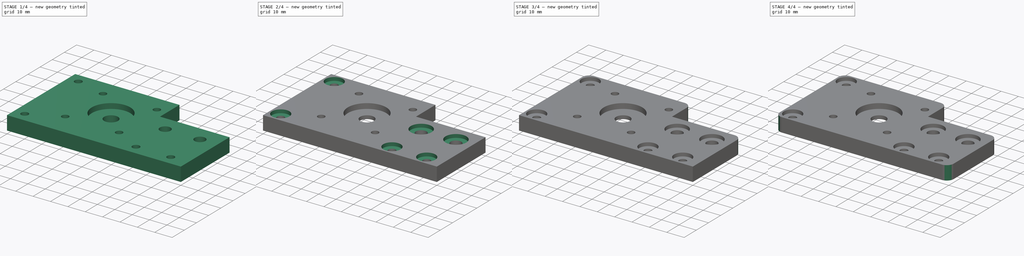
[diagram: build sequence overview — one tinted view per stage of 4, left to right]
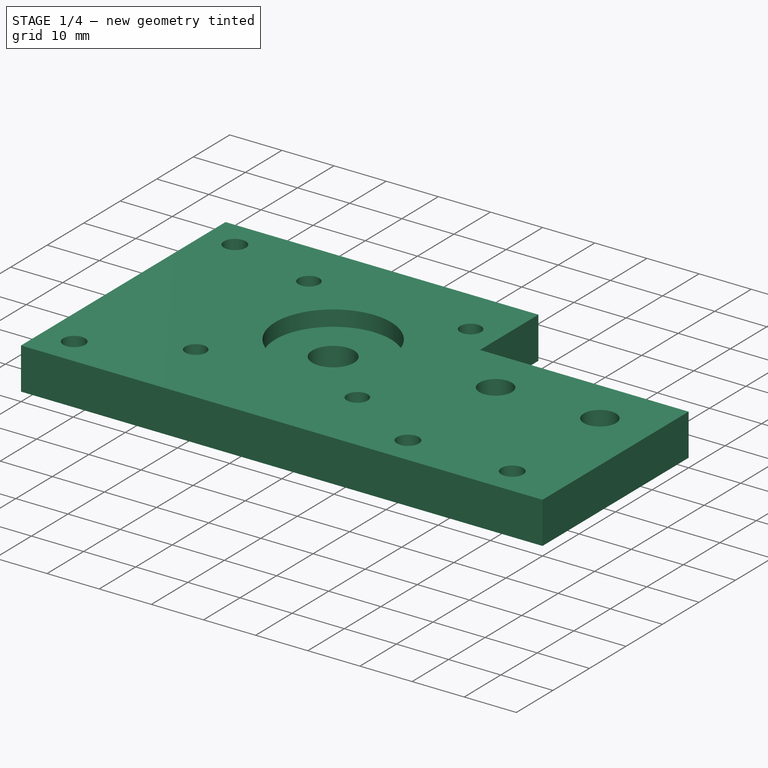
[diagram: stage 1 of 4 — iso view after this stage's code; geometry added in this stage tinted green]
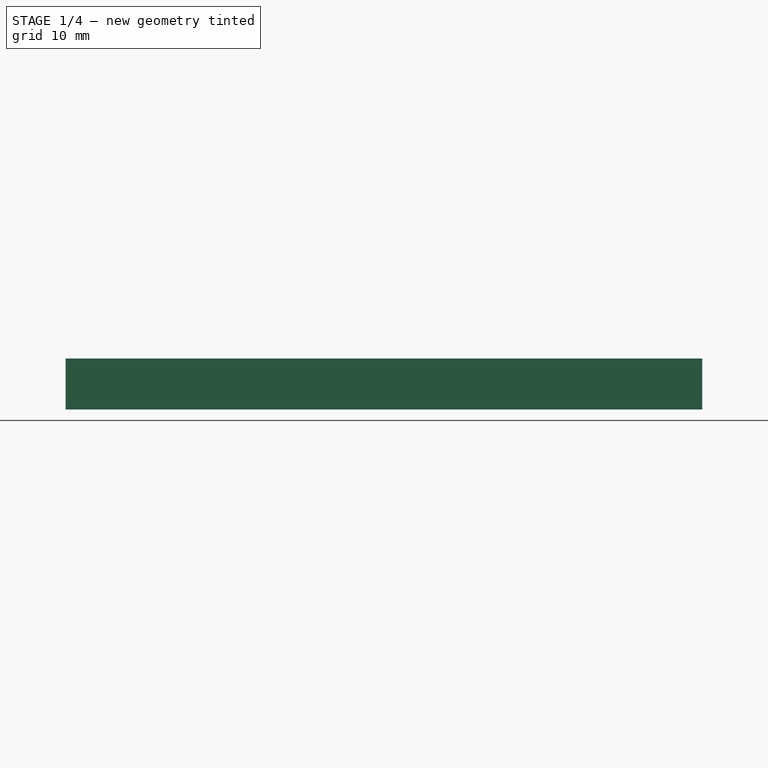
[diagram: stage 1 of 4 — front view after this stage's code; geometry added in this stage tinted green]
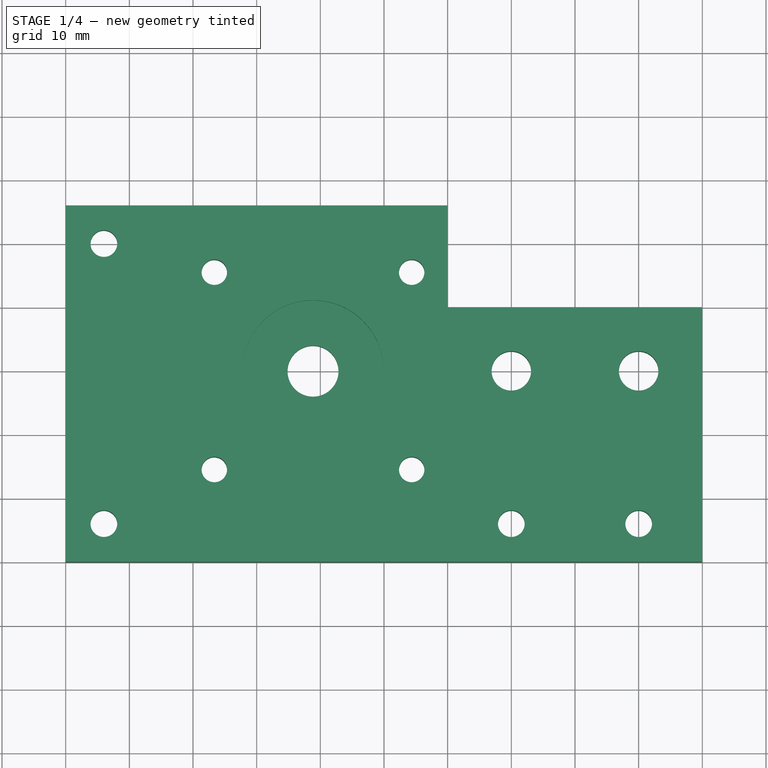
[diagram: stage 1 of 4 — top view after this stage's code; geometry added in this stage tinted green]
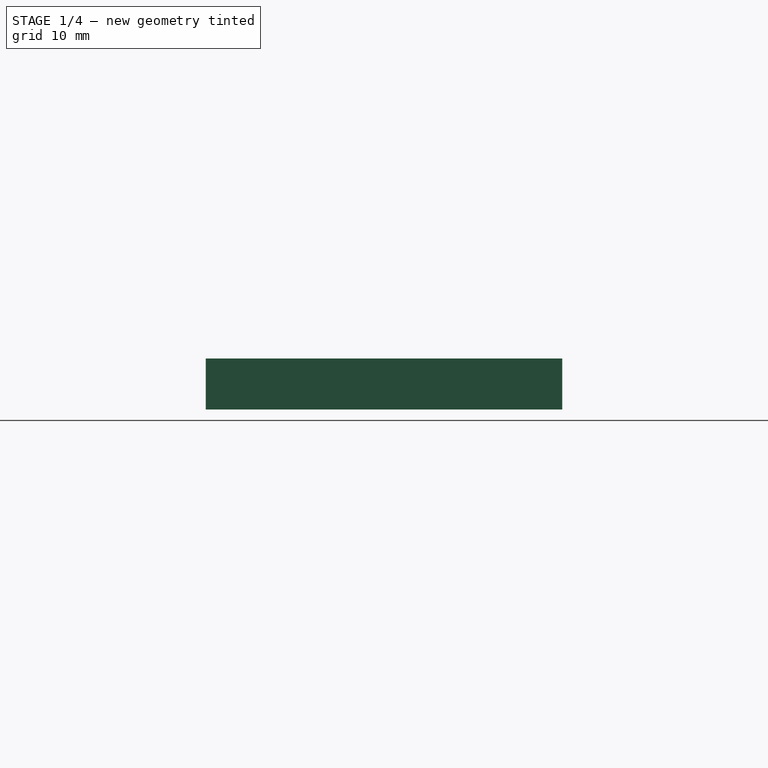
[diagram: stage 1 of 4 — right view after this stage's code; geometry added in this stage tinted green]
FCSTD DOCUMENT  (FreeCAD 0.14R3702 (Git))
Label: idler_nemamount_links3
License: CC-BY 3.0
LicenseURL: http://creativecommons.org/licenses/by/3.0/
objects: PartDesign::Fillet×5, Sketcher::SketchObject×4, PartDesign::Pocket×3, PartDesign::Pad×1
note: 17 computed .brp shape members not serialized (recipe doc carries the construction recipe); baked Part::Feature solids carry a one-line shape summary decoded from their .brp

FEATURE [Sketcher::SketchObject] Sketch
  sketch-geometry (17):
    g0: LineSegment StartX=0 StartY=0 StartZ=0 EndX=0 EndY=56 EndZ=0
    g1: LineSegment StartX=0 StartY=56 StartZ=0 EndX=60 EndY=56 EndZ=0
    g2: LineSegment StartX=60 StartY=56 StartZ=0 EndX=60 EndY=40 EndZ=0
    g3: LineSegment StartX=60 StartY=40 StartZ=0 EndX=100 EndY=40 EndZ=0
    g4: LineSegment StartX=100 StartY=40 StartZ=0 EndX=100 EndY=0 EndZ=0
    g5: LineSegment StartX=100 StartY=0 StartZ=0 EndX=0 EndY=0 EndZ=0
    g6: Circle CenterX=90 CenterY=30 CenterZ=0 NormalX=0 NormalY=0 NormalZ=1 Radius=3.1
    g7: Circle CenterX=70 CenterY=30 CenterZ=0 NormalX=0 NormalY=0 NormalZ=1 Radius=3.1
    g8: Circle CenterX=38.85 CenterY=30 CenterZ=0 NormalX=0 NormalY=0 NormalZ=1 Radius=4
    g9: Circle CenterX=23.35 CenterY=45.5 CenterZ=0 NormalX=0 NormalY=0 NormalZ=1 Radius=2
    g10: Circle CenterX=23.35 CenterY=14.5 CenterZ=0 NormalX=0 NormalY=0 NormalZ=1 Radius=2
    g11: Circle CenterX=54.35 CenterY=14.5 CenterZ=0 NormalX=0 NormalY=0 NormalZ=1 Radius=2
    g12: Circle CenterX=54.35 CenterY=45.5 CenterZ=0 NormalX=0 NormalY=0 NormalZ=1 Radius=2
    g13: Circle CenterX=6 CenterY=6 CenterZ=0 NormalX=0 NormalY=0 NormalZ=1 Radius=2.1
    g14: Circle CenterX=6 CenterY=50 CenterZ=0 NormalX=0 NormalY=0 NormalZ=1 Radius=2.1
    g15: Circle CenterX=90 CenterY=6 CenterZ=0 NormalX=0 NormalY=0 NormalZ=1 Radius=2.1
    g16: Circle CenterX=70 CenterY=6 CenterZ=0 NormalX=0 NormalY=0 NormalZ=1 Radius=2.1
  constraints (50):
    c: Vertical(g0)
    c: Coincident(g0,g1)
    c: Horizontal(g1)
    c: Coincident(g1,g2)
    c: Vertical(g2)
    c: Coincident(g2,g3)
    c: Horizontal(g3)
    c: Coincident(g3,g4)
    c: Vertical(g4)
    c: Coincident(g4,g5)
    c: Coincident(g5,g0)
    c: Horizontal(g5)
    c: DistanceY(g0,g0) = -56
    c: DistanceX(g0,g4) = 100
    c: DistanceY(g3,g4) = -40
    c: DistanceX(g2,g3) = 40
    c: Coincident(g0,g-1)
    c: DistanceX(g-1,g6) = 90
    c: DistanceY(g-1,g6) = 30
    c: Radius(g6) = 3.1
    c: DistanceY(g-1,g7) = 30
    c: DistanceX(g-1,g7) = 70
    c: Radius(g7) = 3.1
    c: DistanceY(g-1,g8) = 30
    c: DistanceX(g-1,g8) = 38.85
    c: Radius(g8) = 4
    c: DistanceX(g9,g8) = 15.5
    c: DistanceY(g9,g8) = -15.5
    c: Radius(g9) = 2
    c: DistanceY(g9,g10) = -31
    c: DistanceX(g10,g8) = 15.5
    c: DistanceX(g11,g10) = -31
    c: DistanceY(g11,g8) = 15.5
    c: DistanceY(g12,g11) = -31
    c: DistanceX(g12,g9) = -31
    c: Radius(g12) = 2
    c: Radius(g11) = 2
    c: Radius(g10) = 2
    c: DistanceX(g-1,g13) = 6
    c: DistanceY(g-1,g13) = 6
    c: Radius(g13) = 2.1
    c: DistanceX(g14,g0) = -6
    c: DistanceY(g14,g0) = 6
    c: Radius(g14) = 2.1
    c: DistanceX(g15,g4) = 10
    c: DistanceY(g15,g4) = -6
    c: Radius(g15) = 2.1
    c: DistanceX(g-1,g16) = 70
    c: DistanceY(g-1,g16) = 6
    c: Radius(g16) = 2.1
FEATURE [PartDesign::Pad] Pad
  Length = 8
  Length2 = 100
  Sketch = -> Sketch
  Type = 0
FEATURE [Sketcher::SketchObject] Sketch001
  Placement = pos=(0,0,8) rot=(0,0,1;0rad)
  Support = -> Pad [Face19]
  sketch-geometry (1):
    g0: Circle CenterX=38.85 CenterY=30 CenterZ=0 NormalX=0 NormalY=0 NormalZ=1 Radius=11.1
  constraints (3):
    c: DistanceY(g-1,g0) = 30
    c: DistanceX(g-1,g0) = 38.85
    c: Radius(g0) = 11.1
FEATURE [PartDesign::Pocket] Pocket
  Length = 3
  Sketch = -> Sketch001
  Type = 0
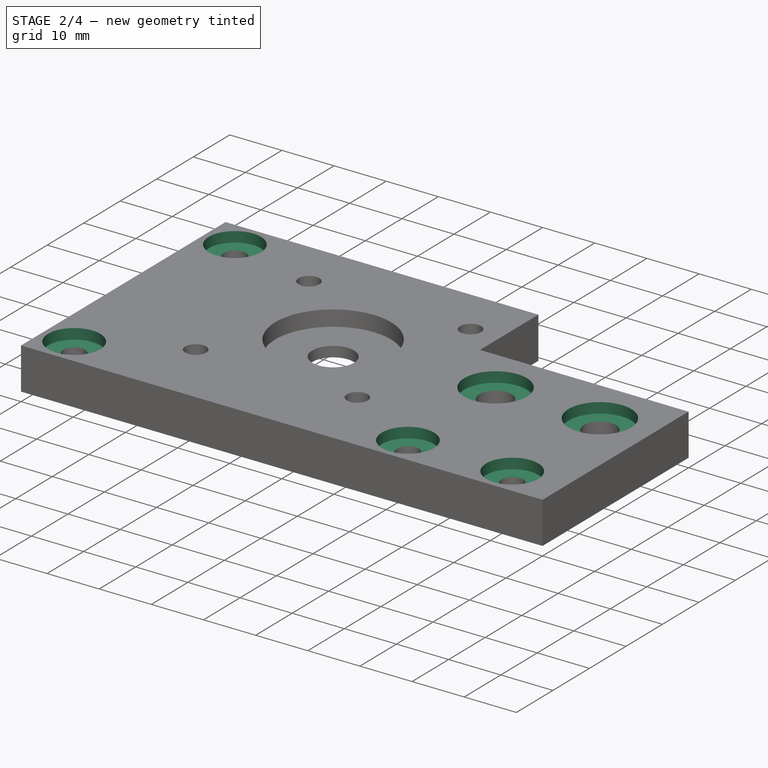
[diagram: stage 2 of 4 — iso view after this stage's code; geometry added in this stage tinted green]
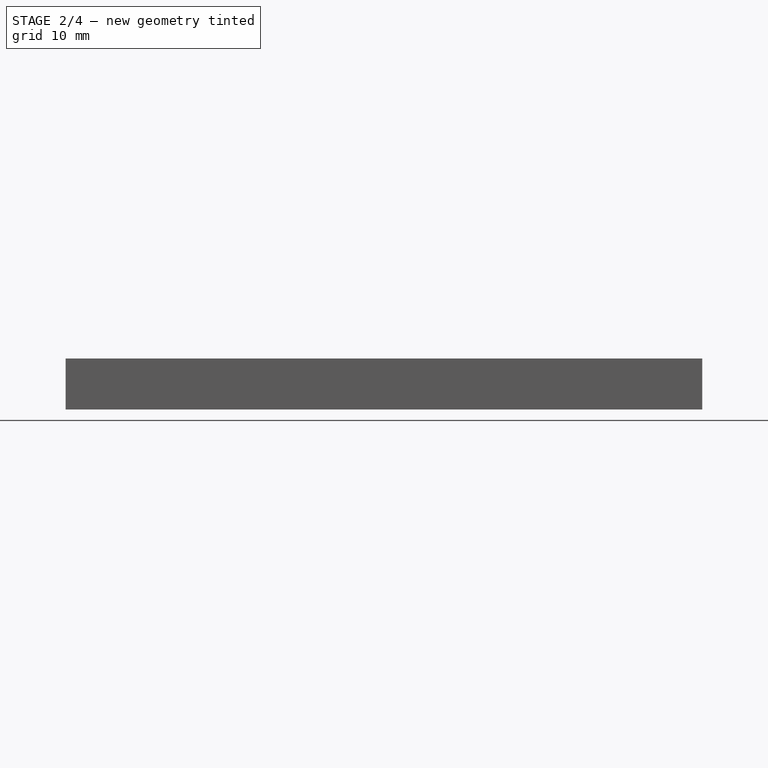
[diagram: stage 2 of 4 — front view after this stage's code; geometry added in this stage tinted green]
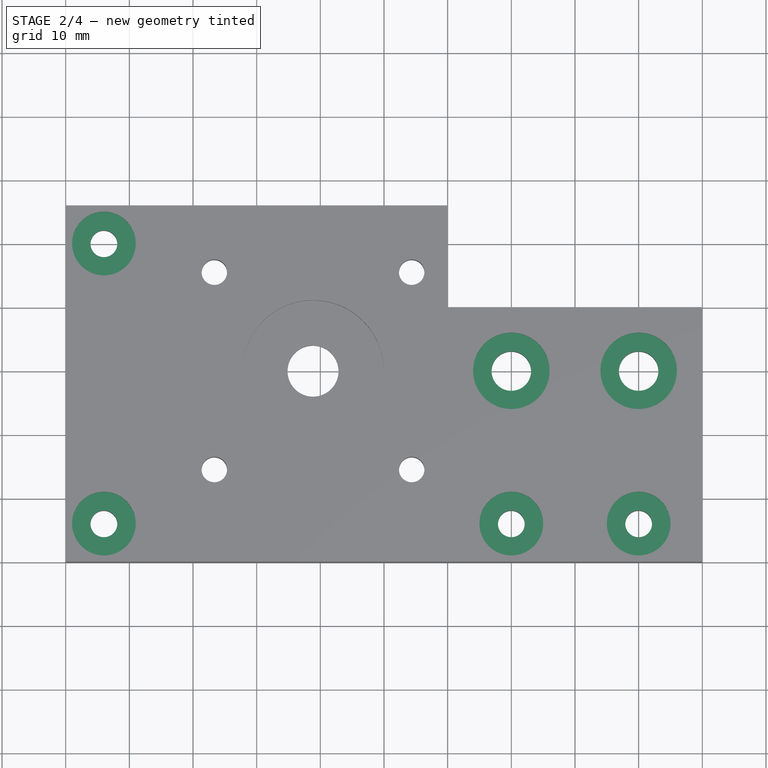
[diagram: stage 2 of 4 — top view after this stage's code; geometry added in this stage tinted green]
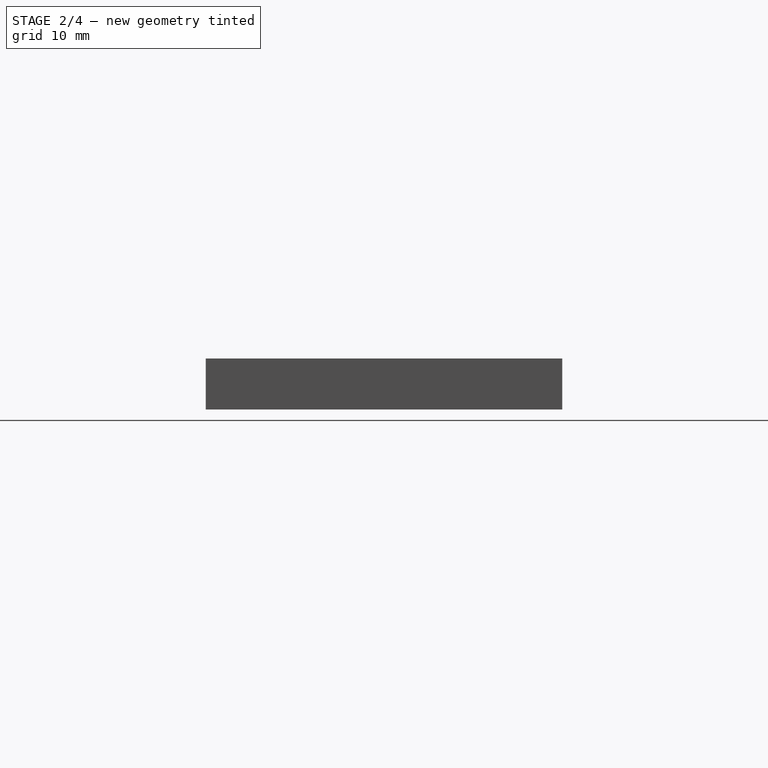
[diagram: stage 2 of 4 — right view after this stage's code; geometry added in this stage tinted green]
FEATURE [Sketcher::SketchObject] Sketch002
  Placement = pos=(0,0,8) rot=(0,0,1;0rad)
  Support = -> Pocket [Face5]
  sketch-geometry (6):
    g0: Circle CenterX=6 CenterY=50 CenterZ=0 NormalX=0 NormalY=0 NormalZ=1 Radius=5
    g1: Circle CenterX=6 CenterY=6 CenterZ=0 NormalX=0 NormalY=0 NormalZ=1 Radius=5
    g2: Circle CenterX=70 CenterY=6 CenterZ=0 NormalX=0 NormalY=0 NormalZ=1 Radius=5
    g3: Circle CenterX=90 CenterY=6 CenterZ=0 NormalX=0 NormalY=0 NormalZ=1 Radius=5
    g4: Circle CenterX=70 CenterY=30 CenterZ=0 NormalX=0 NormalY=0 NormalZ=1 Radius=6
    g5: Circle CenterX=90 CenterY=30 CenterZ=0 NormalX=0 NormalY=0 NormalZ=1 Radius=6
  constraints (18):
    c: DistanceX(g-1,g0) = 6
    c: DistanceY(g-1,g0) = 50
    c: Radius(g0) = 5
    c: DistanceY(g-1,g1) = 6
    c: DistanceX(g-1,g1) = 6
    c: DistanceX(g-1,g2) = 70
    c: DistanceY(g-1,g2) = 6
    c: Radius(g1) = 5
    c: Radius(g2) = 5
    c: DistanceX(g-1,g3) = 90
    c: DistanceY(g-1,g3) = 6
    c: Radius(g3) = 5
    c: DistanceX(g-1,g4) = 70
    c: DistanceY(g-1,g4) = 30
    c: Radius(g4) = 6
    c: DistanceX(g5,g4) = -20
    c: DistanceY(g-1,g5) = 30
    c: Radius(g5) = 6
FEATURE [PartDesign::Pocket] Pocket001
  Length = 2
  Sketch = -> Sketch002
  Type = 0
FEATURE [Sketcher::SketchObject] Sketch003
  Placement = pos=(0,0,0) rot=(1,0,0;3.14159rad)
  Support = -> Pocket001 [Face4]
  sketch-geometry (1):
    g0: Circle CenterX=38.85 CenterY=-30 CenterZ=0 NormalX=0 NormalY=0 NormalZ=1 Radius=11.1
  constraints (3):
    c: DistanceX(g-1,g0) = 38.85
    c: DistanceY(g-1,g0) = -30
    c: Radius(g0) = 11.1
FEATURE [PartDesign::Pocket] Pocket002
  Length = 3
  Sketch = -> Sketch003
  Type = 0
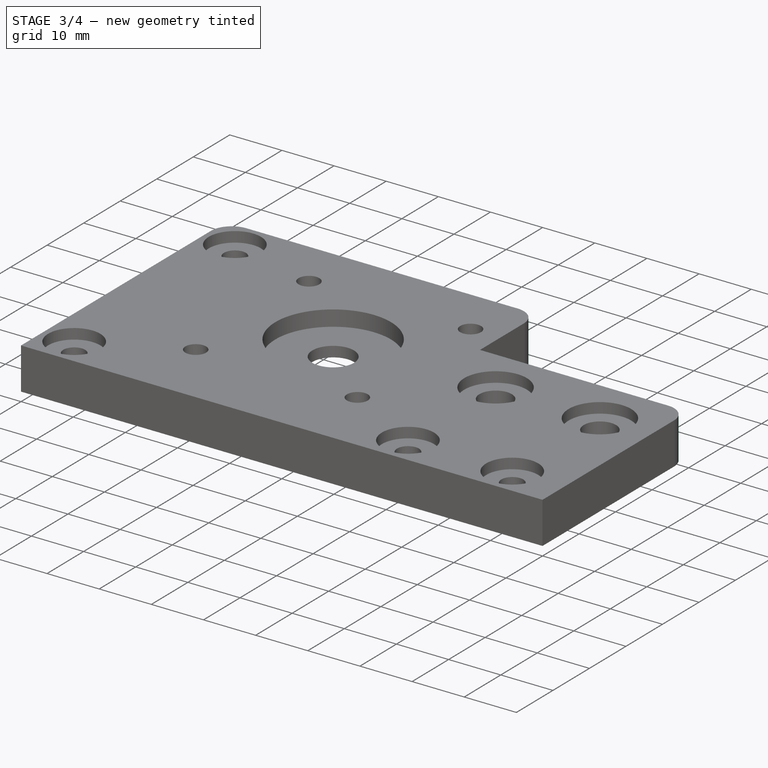
[diagram: stage 3 of 4 — iso view after this stage's code; geometry added in this stage tinted green]
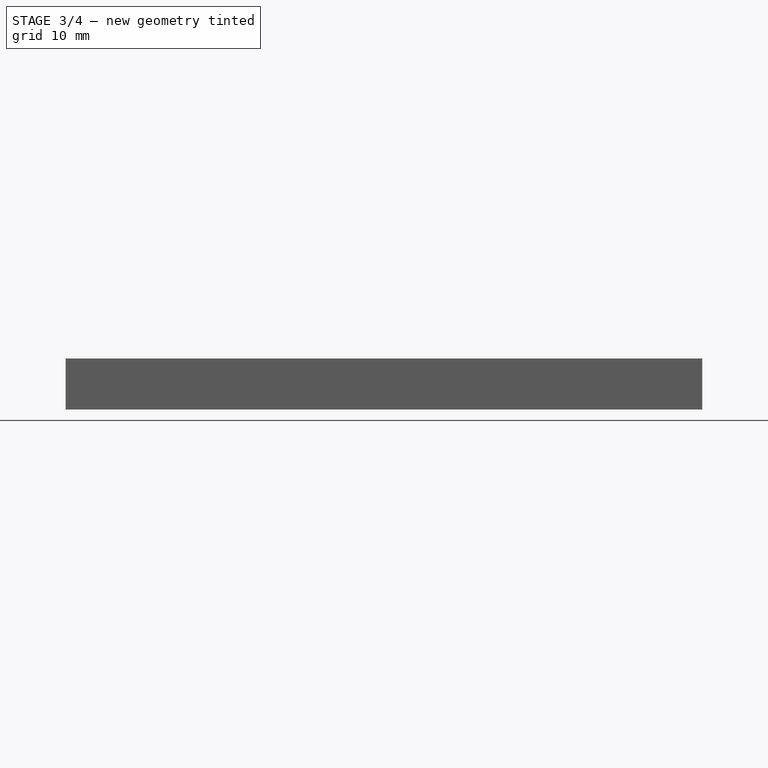
[diagram: stage 3 of 4 — front view after this stage's code; geometry added in this stage tinted green]
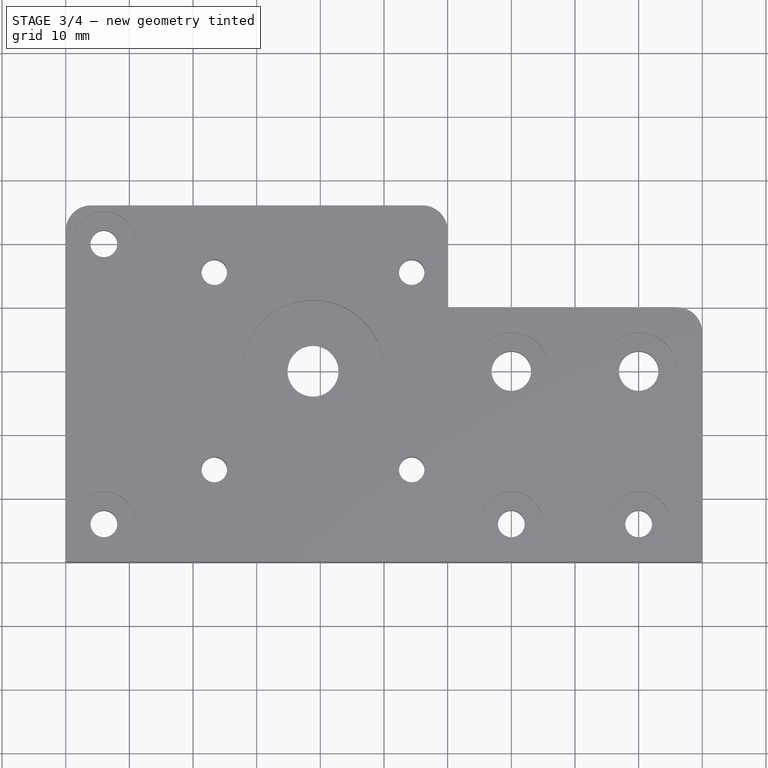
[diagram: stage 3 of 4 — top view after this stage's code; geometry added in this stage tinted green]
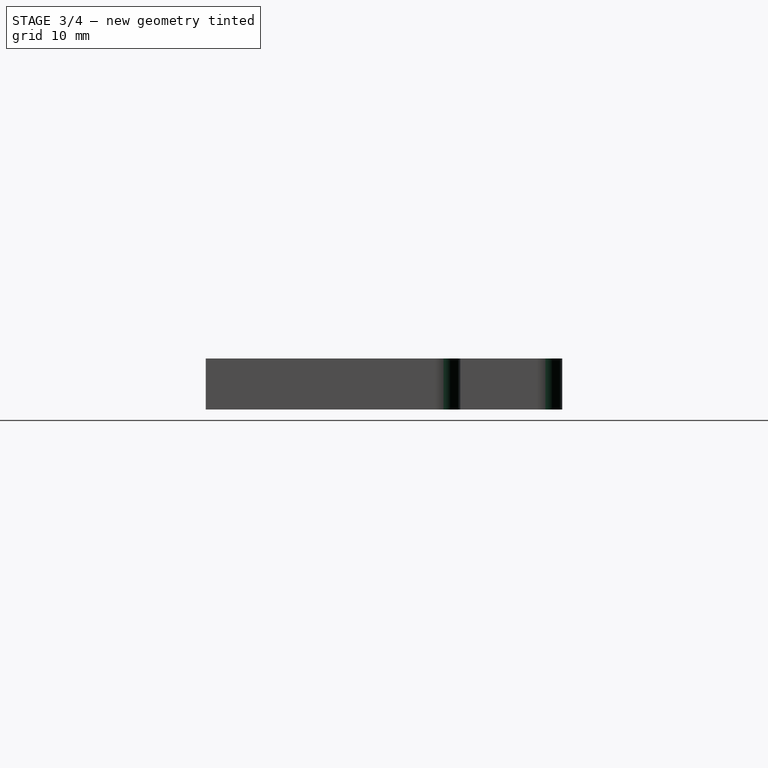
[diagram: stage 3 of 4 — right view after this stage's code; geometry added in this stage tinted green]
FEATURE [PartDesign::Fillet] Fillet
  Base = -> Pocket002 [Edge2]
  Radius = 4
FEATURE [PartDesign::Fillet] Fillet001
  Base = -> Fillet [Edge41]
  Radius = 4
FEATURE [PartDesign::Fillet] Fillet002
  Base = -> Fillet001 [Edge31]
  Radius = 4
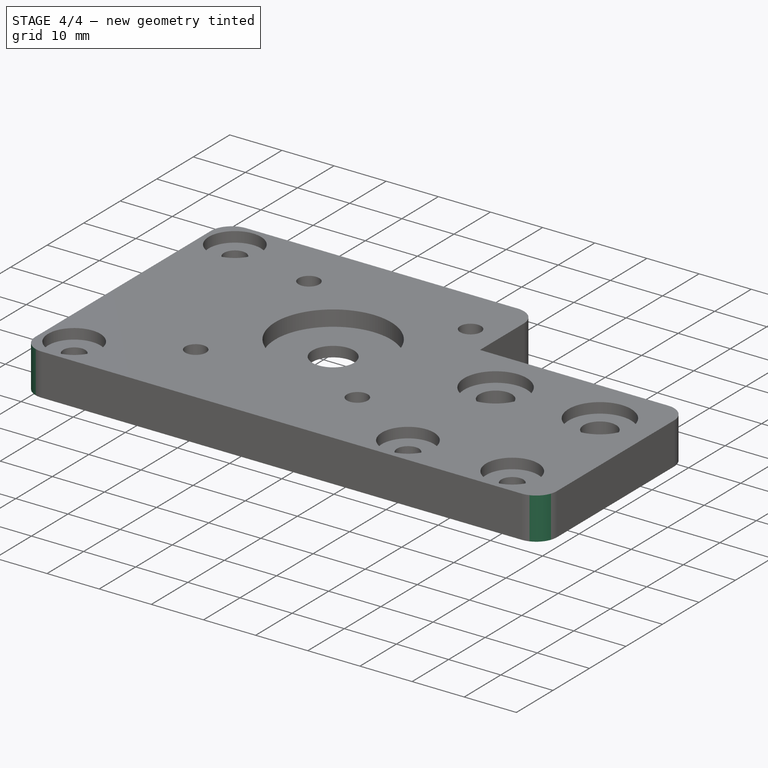
[diagram: stage 4 of 4 — iso view after this stage's code; geometry added in this stage tinted green]
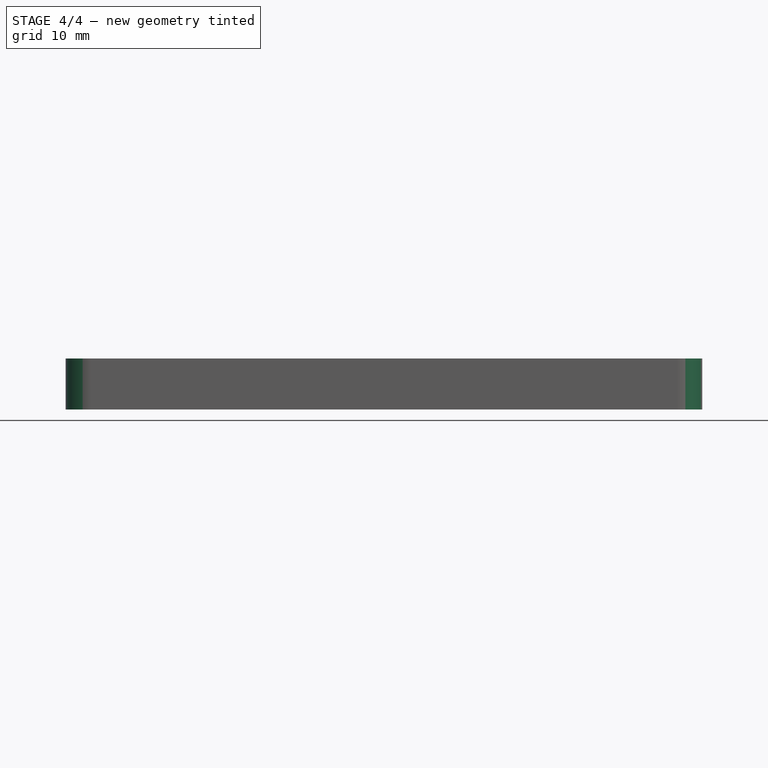
[diagram: stage 4 of 4 — front view after this stage's code; geometry added in this stage tinted green]
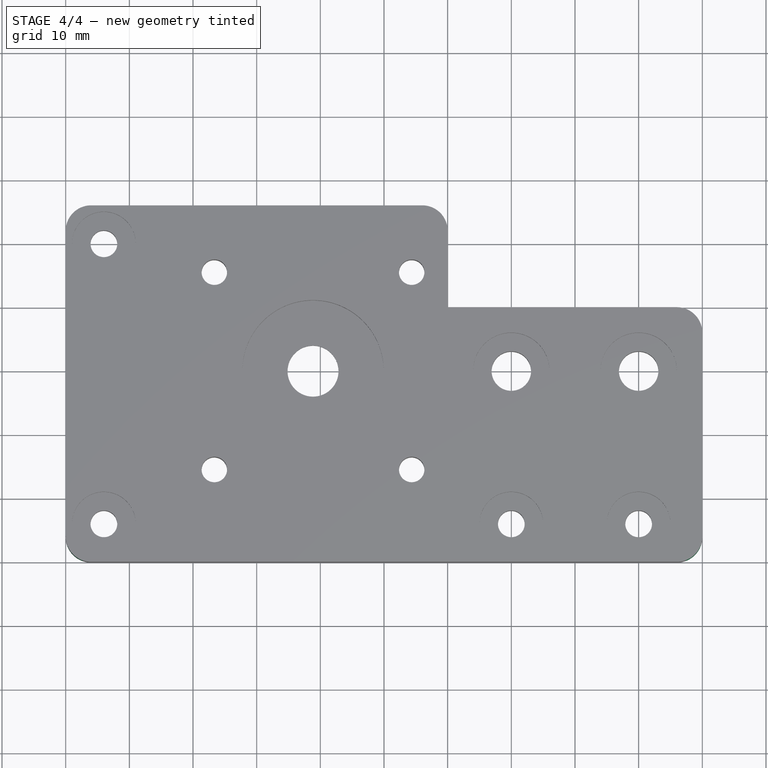
[diagram: stage 4 of 4 — top view after this stage's code; geometry added in this stage tinted green]
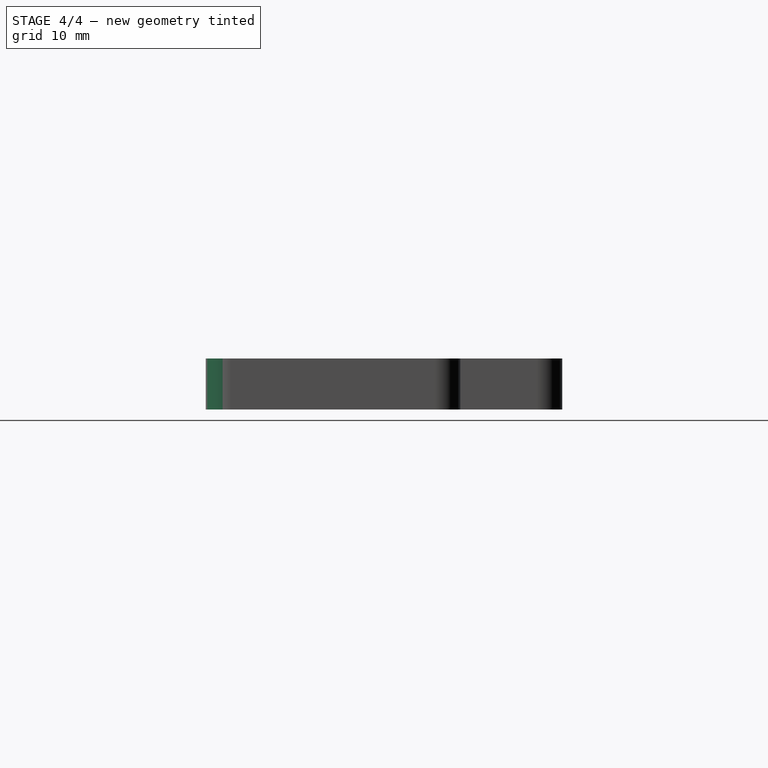
[diagram: stage 4 of 4 — right view after this stage's code; geometry added in this stage tinted green]
FEATURE [PartDesign::Fillet] Fillet003
  Base = -> Fillet002 [Edge28]
  Radius = 4
FEATURE [PartDesign::Fillet] Fillet004
  Base = -> Fillet003 [Edge29]
  Radius = 4
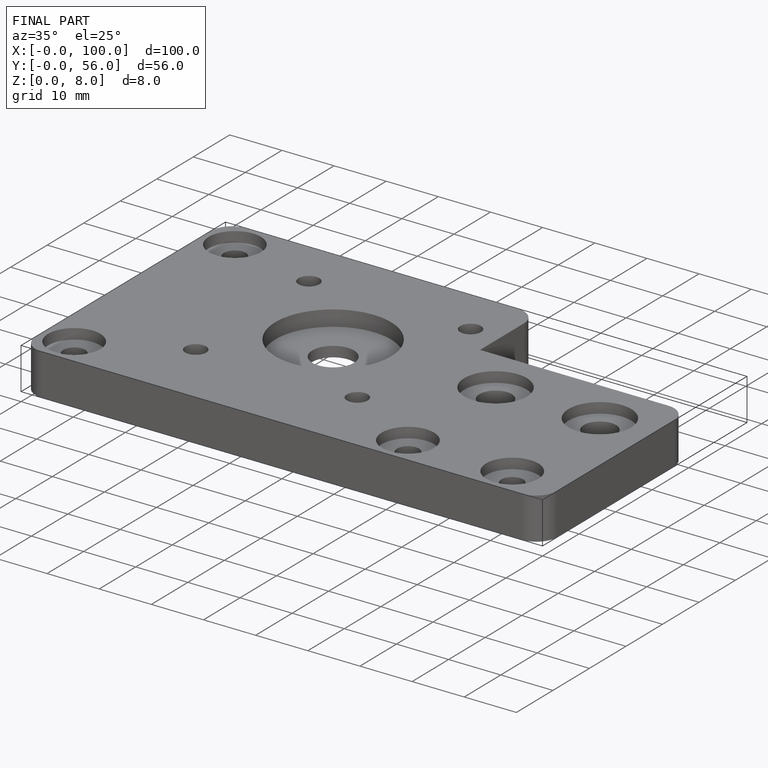
[diagram: finished part — iso view with bounding-box wireframe]
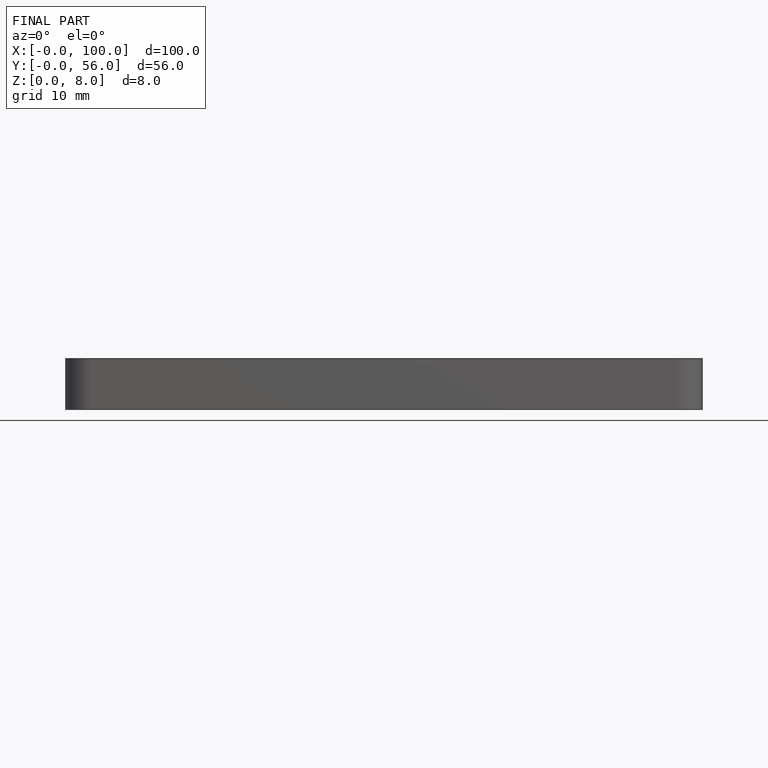
[diagram: finished part — front view with bounding-box wireframe]
